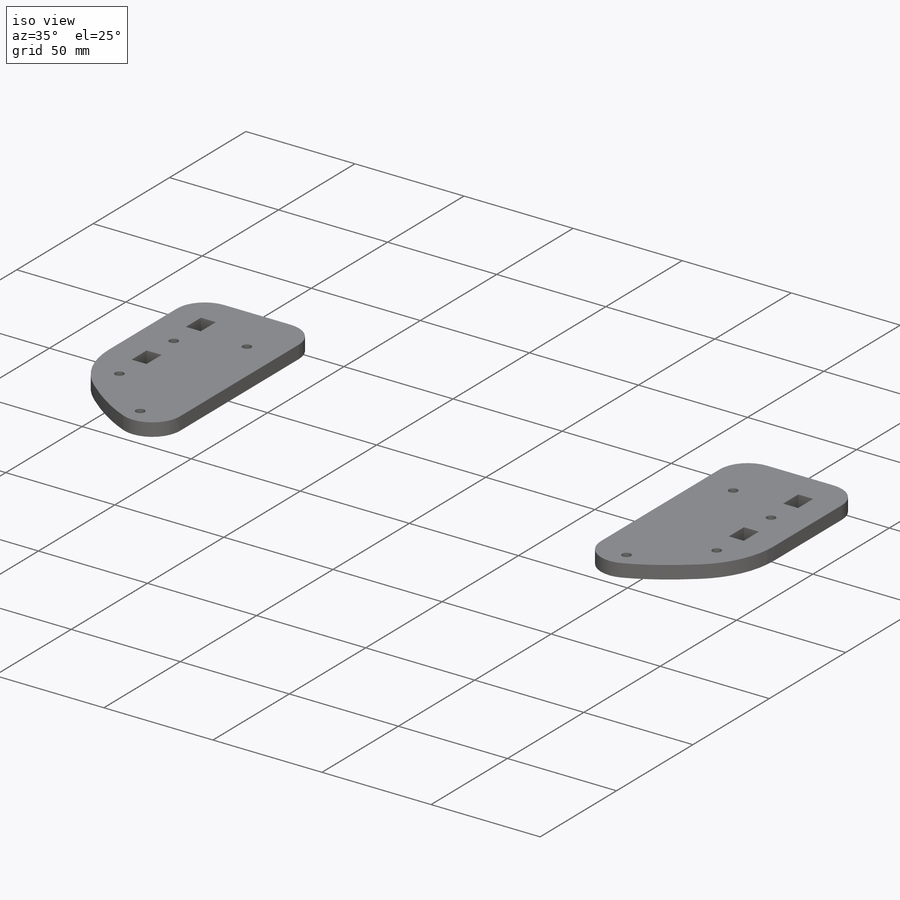
[diagram: iso view]
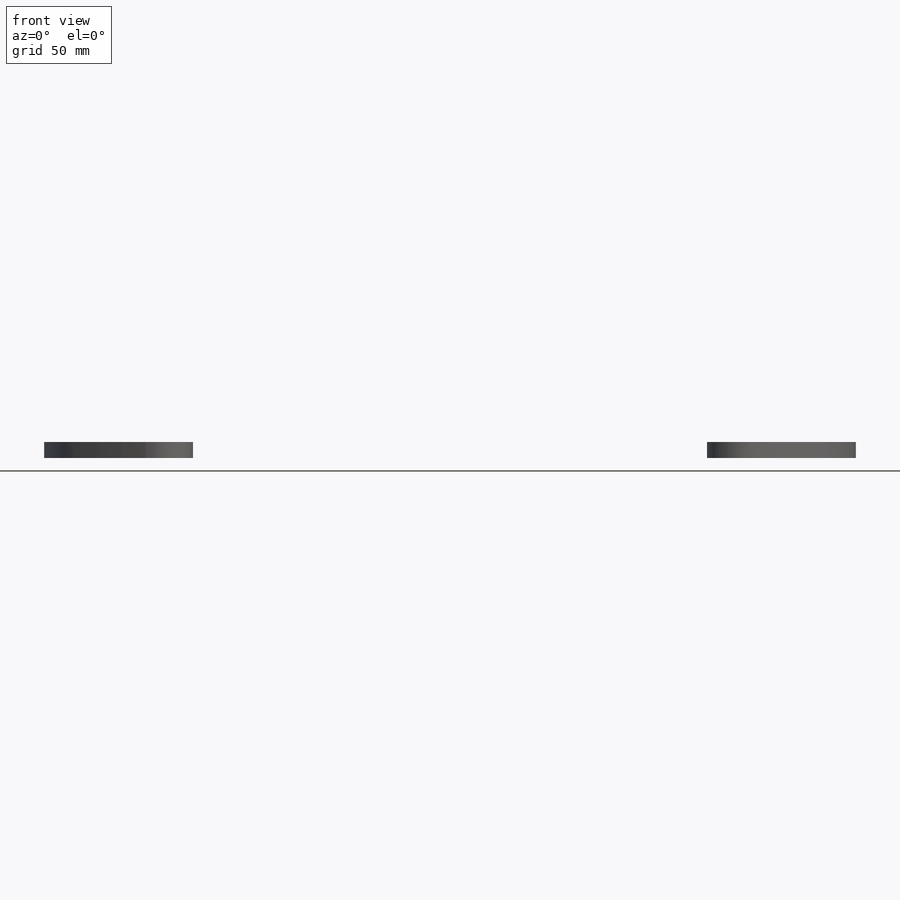
[diagram: front view]
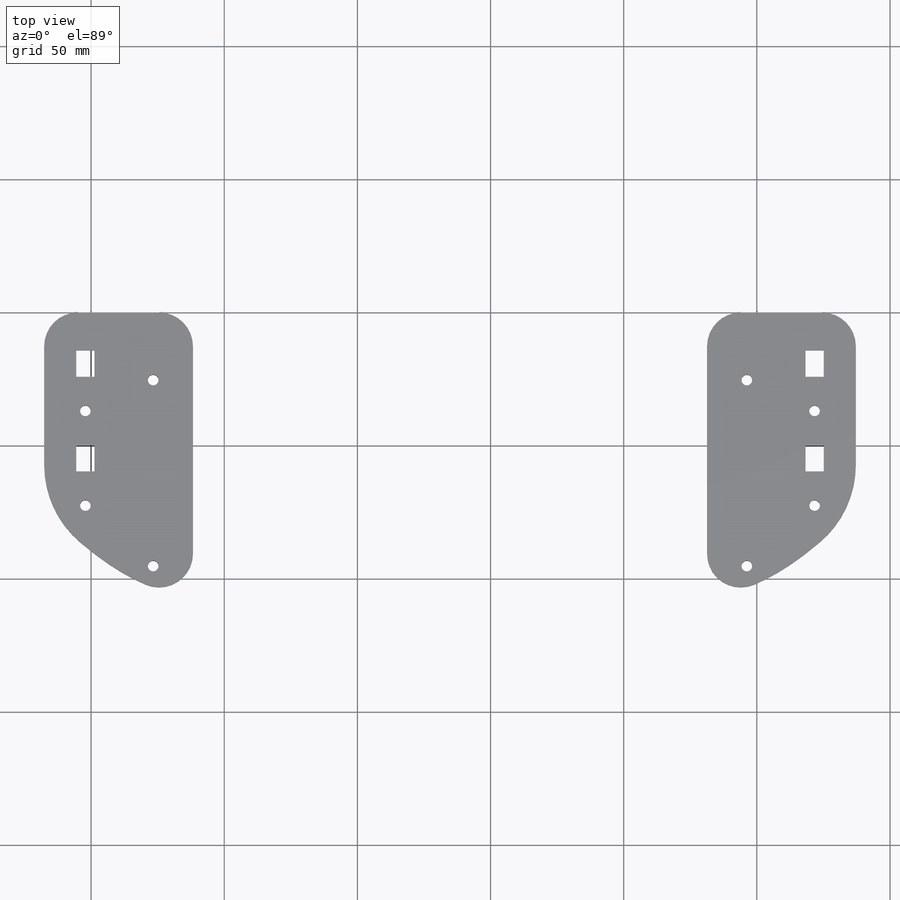
[diagram: top view]
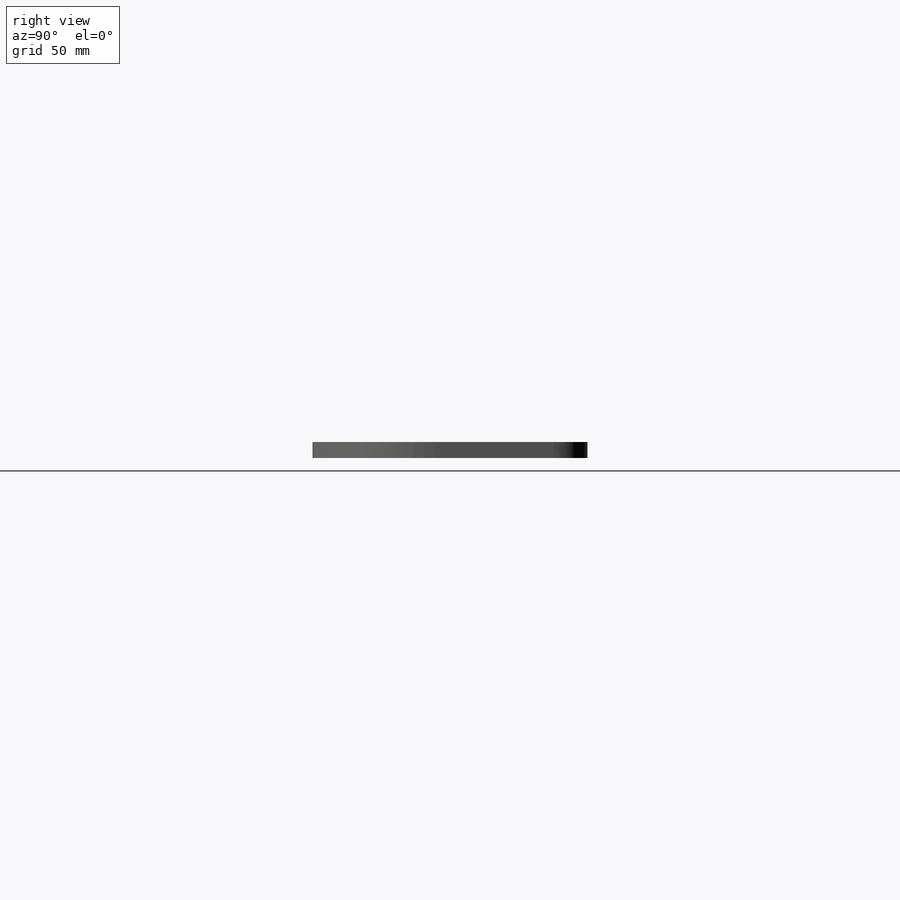
[diagram: right view]
SOLIDWORKS PART (.sldprt)
format: sldprt  version: not decoded by parser v0  size: 325,632 bytes
history: native  units: mm
features: fillet x8, material x1, sketch x1, extrude x1 (+11 scaffold rows collapsed)
feature tree (22):
  scaffold x11  (default folders/planes/origin — collapsed)
  material  "Material <not specified>"
  sketch  "Sketch1"  dims[c1.D3=~97.114481mm c1.D8=5.0mm c1.D12=5.0mm c1.D13=5.0mm c2.D8=3.0mm c2.D14=~3.344992mm c2.D18=~5.901211mm c2.D20=~224.771832mm c3.D20=95.25mm c3.D21=5.0mm c3.D6=95.25mm c3.D9=95.25mm c3.D23=5.0mm c3.D5=15.24mm c3.D25=177.8mm c3.D22=~20.58459mm c3.D1=~128.217162mm c4.D6=~6.91393mm c4.D10=5.08mm c4.D14=~4.334319mm c4.D20=5.08mm c4.D21=~183.162005mm c4.D13=185.42mm c5.D21=~3.96875mm c5.D22=~3.96875mm c5.D1=355.6mm c5.D2=160.0mm c5.D3=85.0mm c5.D4=85.0mm c6.D2=150.0mm c6.D5=170.0mm c6.D6=190.0mm c6.D7=175.0mm c6.D8=6.604mm c6.D9=10.0mm c6.D10=~12.745037mm c6.D11=12.7mm c6.D12=12.7mm c6.D13=10.0mm c7.D6=101.6mm c7.D8=10.16mm c7.D9=10.0mm c7.D10=5.9944mm c7.D11=2.5mm c7.D12=17.78mm c7.D13=17.78mm c7.D14=17.78mm c7.D15=13.97mm c7.D16=276.098mm c7.D17=17.78mm c7.D18=25.0mm c7.D19=69.85mm c7.D20=170.0mm c8.D9=10.16mm c8.D11=2.5mm c8.D12=17.78mm c8.D14=17.78mm c8.D15=18.288mm c8.D21=18.288mm c8.D6=138.049mm c8.D5=123.825mm c9.D6=10.16mm c9.D7=2.5mm c9.D15=2.5mm c10.D7=5.9944mm c10.D15=17.78mm c10.D16=17.78mm c10.D5=277.622mm c10.D9=160.2mm c10.D3=160.2mm c11.D9=111.125mm c11.D11=111.125mm c11.D12=111.125mm c11.D14=69.85mm c11.D21=330.2mm c12.D14=24.892mm c12.D21=69.85mm c12.D22=24.892mm c12.D5=67.4mm c12.D20=92.8mm c13.D5=110.4mm c13.D3=76.2mm c13.D4=76.2mm c14.D5=76.2mm c14.D20=~84.770977mm c14.D23=~38.965214mm c15.D20=25.4mm c15.D23=25.4mm c15.D24=~91.581002mm c16.D20=25.4mm c16.D5=101.6mm c16.D3=98.425mm c16.D4=98.425mm c17.D5=~304.361651mm c17.D13=13.462mm c17.D24=13.462mm c17.D25=~8.269002mm c17.D22=7.62mm c17.D20=9.906mm c18.D22=152.4mm c18.D23=152.4mm c18.D25=~91.581002mm c18.D26=~91.581002mm c18.D27=~55.660825mm c18.D28=53.975mm c18.D29=~157.703023mm c19.D28=~157.703023mm c19.D3=96.52mm c19.D4=96.52mm c19.D1=152.4mm c19.D2=152.4mm c20.D3=96.52mm c20.D4=96.52mm c20.D5=69.85mm c20.D6=9.906mm c20.D7=9.906mm c20.D8=6.858mm c20.D9=6.858mm c20.D10=15.494mm c20.D11=12.7mm c20.D12=25.4mm c20.D13=101.6mm c20.D14=9.906mm c20.D15=17.78mm c20.D16=17.78mm c20.D17=17.78mm c20.D18=55.88mm c20.D19=55.88mm c20.D20=17.78mm c21.D14=17.78mm c21.D20=19.05mm c21.D21=~155.666983mm c21.D13=218.44mm c22.D21=69.85mm c22.D13=109.22mm c22.D11=111.465mm c23.D13=6.858mm c23.D21=2.9972mm c23.D22=25.781mm]
  extrude  "Extrude1"  Depth=5.9944mm
  fillet  "Fillet1"  Radius=12.7mm
  fillet  "Fillet2"  Radius=12.7mm
  fillet  "Fillet3"  Radius=12.7mm
  fillet  "Fillet5"  Radius=12.7mm
  fillet  "Fillet6"  Radius=12.7mm
  fillet  "Fillet7"  Radius=38.1mm
  fillet  "Fillet8"  Radius=38.1mm
  fillet  "Fillet9"  Radius=12.7mm
decode coverage: 10 of 10 modeling features carry decoded parameters
note: ~ marks probable driven/reference dimensions
note: suppression state not decoded; provenance and decode notes live in map.json
